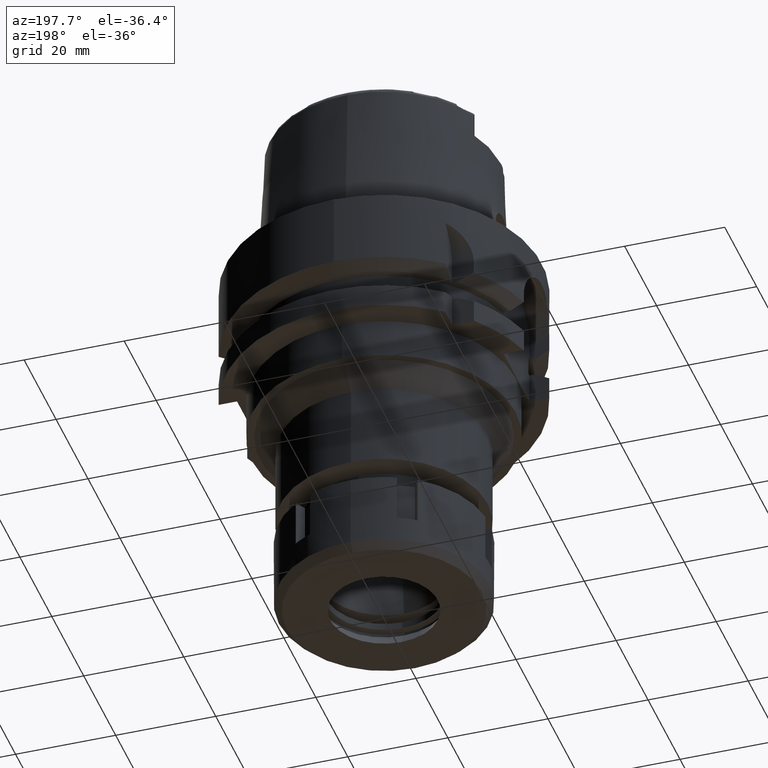
[diagram: clean part render]
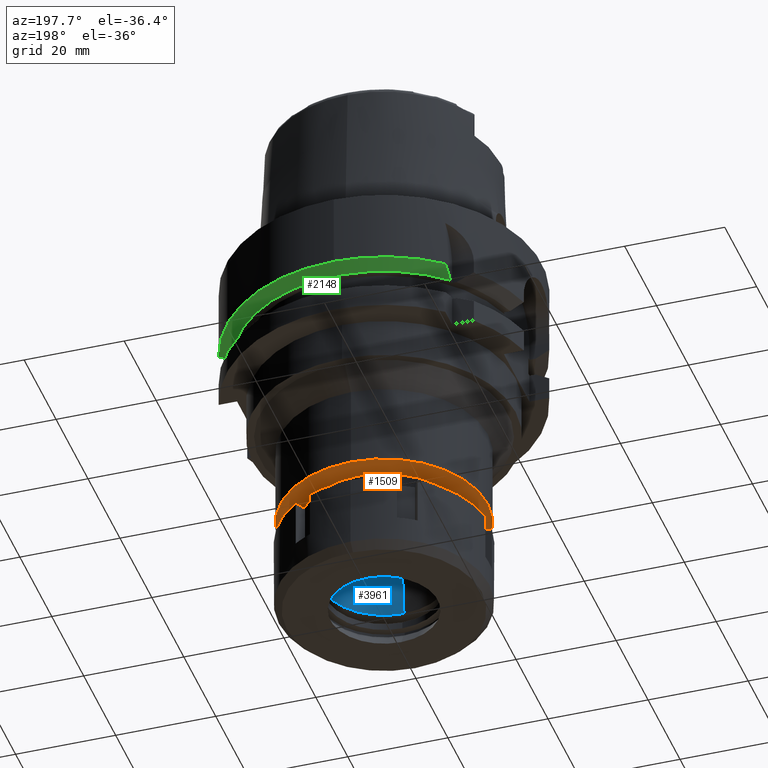
[diagram: same view with three faces highlighted in distinct colors, each labeled with its STEP entity id]
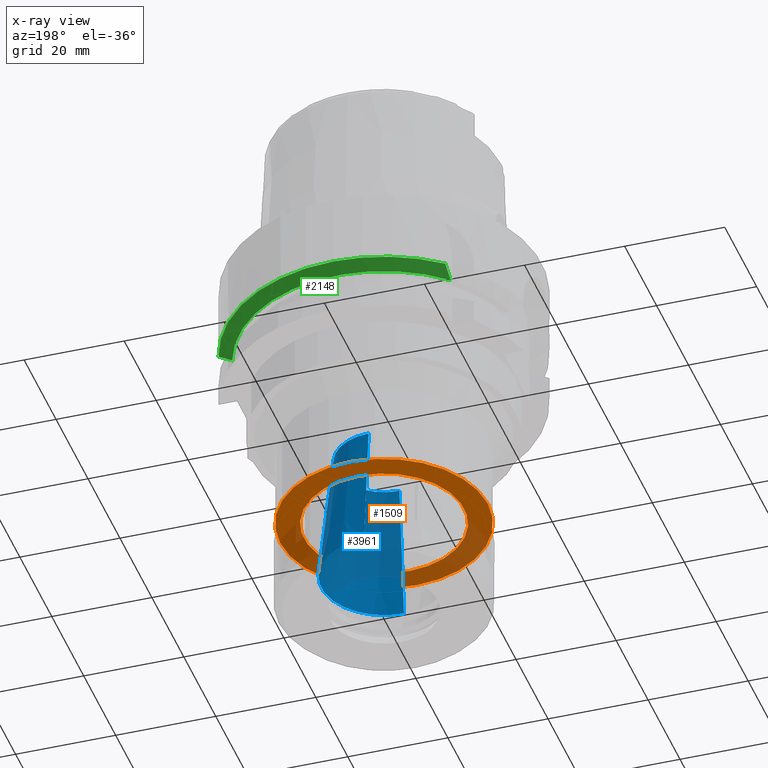
[diagram: x-ray of the same camera — body ghosted, the three highlighted faces saturated]
A machine part, auxiliary view with three faces highlighted in distinct colors.
The next image is the same camera in x-ray (body ghosted, the three faces saturated) — at least one of them is partly hidden behind the body in this view.
Their STEP definitions:

[orange] entity #1509 — the highlighted planar face has unit normal (0, 0, 1).
#61 = CIRCLE ( 'NONE', #3611, 16.00000000000000000 ) ;
#65 = CARTESIAN_POINT ( 'NONE',  ( 0.0000000000000000000, 0.0000000000000000000, -54.50000000000000000 ) ) ;
#177 = EDGE_LOOP ( 'NONE', ( #2075, #2096 ) ) ;
#295 = CARTESIAN_POINT ( 'NONE',  ( 0.0000000000000000000, 20.75000000000000000, -54.50000000000000000 ) ) ;
#370 = CARTESIAN_POINT ( 'NONE',  ( 0.0000000000000000000, 0.0000000000000000000, -54.50000000000000000 ) ) ;
#522 = EDGE_CURVE ( 'NONE', #5418, #2627, #5228, .T. ) ;
#898 = CARTESIAN_POINT ( 'NONE',  ( 0.0000000000000000000, 0.0000000000000000000, -54.50000000000000000 ) ) ;
#951 = AXIS2_PLACEMENT_3D ( 'NONE', #370, #2325, #4375 ) ;
#1010 = DIRECTION ( 'NONE',  ( 0.0000000000000000000, -1.000000000000000000, 0.0000000000000000000 ) ) ;
#1313 = EDGE_LOOP ( 'NONE', ( #4083, #4517 ) ) ;
#1509 = ADVANCED_FACE ( 'NONE', ( #5154, #2772 ), #2356, .F. ) ;
#2019 = EDGE_CURVE ( 'NONE', #3638, #3792, #4506, .T. ) ;
#2075 = ORIENTED_EDGE ( 'NONE', *, *, #3304, .F. ) ;
#2096 = ORIENTED_EDGE ( 'NONE', *, *, #2019, .F. ) ;
#2196 = CIRCLE ( 'NONE', #2594, 20.75000000000000000 ) ;
#2247 = CARTESIAN_POINT ( 'NONE',  ( 0.0000000000000000000, -20.75000000000000000, -54.50000000000000000 ) ) ;
#2297 = DIRECTION ( 'NONE',  ( 1.000000000000000000, 0.0000000000000000000, 0.0000000000000000000 ) ) ;
#2325 = DIRECTION ( 'NONE',  ( 0.0000000000000000000, 0.0000000000000000000, 1.000000000000000000 ) ) ;
#2356 = PLANE ( 'NONE',  #2910 ) ;
#2594 = AXIS2_PLACEMENT_3D ( 'NONE', #898, #6249, #4305 ) ;
#2620 = DIRECTION ( 'NONE',  ( 0.0000000000000000000, 1.000000000000000000, 0.0000000000000000000 ) ) ;
#2627 = VERTEX_POINT ( 'NONE', #5960 ) ;
#2772 = FACE_BOUND ( 'NONE', #1313, .T. ) ;
#2910 = AXIS2_PLACEMENT_3D ( 'NONE', #3726, #5715, #2297 ) ;
#3223 = CARTESIAN_POINT ( 'NONE',  ( 0.0000000000000000000, -16.00000000000000000, -54.50000000000000000 ) ) ;
#3304 = EDGE_CURVE ( 'NONE', #3792, #3638, #2196, .T. ) ;
#3611 = AXIS2_PLACEMENT_3D ( 'NONE', #6131, #4653, #2620 ) ;
#3638 = VERTEX_POINT ( 'NONE', #2247 ) ;
#3692 = EDGE_CURVE ( 'NONE', #2627, #5418, #61, .T. ) ;
#3726 = CARTESIAN_POINT ( 'NONE',  ( 0.0000000000000000000, 0.0000000000000000000, -54.50000000000000000 ) ) ;
#3792 = VERTEX_POINT ( 'NONE', #295 ) ;
#4083 = ORIENTED_EDGE ( 'NONE', *, *, #3692, .F. ) ;
#4305 = DIRECTION ( 'NONE',  ( 0.0000000000000000000, 1.000000000000000000, 0.0000000000000000000 ) ) ;
#4375 = DIRECTION ( 'NONE',  ( 0.0000000000000000000, -1.000000000000000000, 0.0000000000000000000 ) ) ;
#4506 = CIRCLE ( 'NONE', #951, 20.75000000000000000 ) ;
#4517 = ORIENTED_EDGE ( 'NONE', *, *, #522, .F. ) ;
#4653 = DIRECTION ( 'NONE',  ( 0.0000000000000000000, 0.0000000000000000000, -1.000000000000000000 ) ) ;
#5154 = FACE_OUTER_BOUND ( 'NONE', #177, .T. ) ;
#5228 = CIRCLE ( 'NONE', #5923, 16.00000000000000000 ) ;
#5418 = VERTEX_POINT ( 'NONE', #3223 ) ;
#5715 = DIRECTION ( 'NONE',  ( 0.0000000000000000000, 0.0000000000000000000, 1.000000000000000000 ) ) ;
#5836 = DIRECTION ( 'NONE',  ( 0.0000000000000000000, 0.0000000000000000000, -1.000000000000000000 ) ) ;
#5923 = AXIS2_PLACEMENT_3D ( 'NONE', #65, #5836, #1010 ) ;
#5960 = CARTESIAN_POINT ( 'NONE',  ( 0.0000000000000000000, 16.00000000000000000, -54.50000000000000000 ) ) ;
#6131 = CARTESIAN_POINT ( 'NONE',  ( 0.0000000000000000000, 0.0000000000000000000, -54.50000000000000000 ) ) ;
#6249 = DIRECTION ( 'NONE',  ( 0.0000000000000000000, 0.0000000000000000000, 1.000000000000000000 ) ) ;

[blue] entity #3961 — the highlighted conical surface has half-angle 6 deg.
#42 = AXIS2_PLACEMENT_3D ( 'NONE', #4026, #4120, #4087 ) ;
#64 = EDGE_CURVE ( 'NONE', #1741, #5789, #1886, .T. ) ;
#162 = VECTOR ( 'NONE', #5600, 1000.000000000000227 ) ;
#252 = FACE_OUTER_BOUND ( 'NONE', #4830, .T. ) ;
#315 = CARTESIAN_POINT ( 'NONE',  ( 0.0000000000000000000, 0.0000000000000000000, -53.50000000000000000 ) ) ;
#424 = CONICAL_SURFACE ( 'NONE', #1244, 11.08109282390999972, 0.1047197551196402399 ) ;
#1031 = CARTESIAN_POINT ( 'NONE',  ( 0.0000000000000000000, -12.50000000000000000, -67.00000000000000000 ) ) ;
#1244 = AXIS2_PLACEMENT_3D ( 'NONE', #315, #3196, #3757 ) ;
#1305 = ORIENTED_EDGE ( 'NONE', *, *, #2588, .F. ) ;
#1379 = EDGE_CURVE ( 'NONE', #5789, #5576, #4610, .T. ) ;
#1739 = DIRECTION ( 'NONE',  ( 0.0000000000000000000, -0.1045284632676965891, 0.9945218953682687379 ) ) ;
#1741 = VERTEX_POINT ( 'NONE', #2122 ) ;
#1886 = CIRCLE ( 'NONE', #42, 12.50000000000000000 ) ;
#2010 = DIRECTION ( 'NONE',  ( 0.0000000000000000000, 0.0000000000000000000, 1.000000000000000000 ) ) ;
#2122 = CARTESIAN_POINT ( 'NONE',  ( 0.0000000000000000000, 12.50000000000000000, -67.00000000000000000 ) ) ;
#2588 = EDGE_CURVE ( 'NONE', #1741, #6066, #4069, .T. ) ;
#3196 = DIRECTION ( 'NONE',  ( 0.0000000000000000000, 0.0000000000000000000, -1.000000000000000000 ) ) ;
#3276 = CARTESIAN_POINT ( 'NONE',  ( 0.0000000000000000000, 9.662185647822997936, -40.00000000000000000 ) ) ;
#3504 = CARTESIAN_POINT ( 'NONE',  ( 0.0000000000000000000, 0.0000000000000000000, -40.00000000000000000 ) ) ;
#3663 = CARTESIAN_POINT ( 'NONE',  ( 0.0000000000000000000, -12.50000000000000000, -67.00000000000000000 ) ) ;
#3705 = CARTESIAN_POINT ( 'NONE',  ( 0.0000000000000000000, 12.50000000000000000, -67.00000000000000000 ) ) ;
#3738 = VECTOR ( 'NONE', #1739, 1000.000000000000227 ) ;
#3757 = DIRECTION ( 'NONE',  ( 0.0000000000000000000, -1.000000000000000000, 0.0000000000000000000 ) ) ;
#3767 = CIRCLE ( 'NONE', #5876, 9.662185647822997936 ) ;
#3961 = ADVANCED_FACE ( 'NONE', ( #252 ), #424, .F. ) ;
#4026 = CARTESIAN_POINT ( 'NONE',  ( 0.0000000000000000000, 0.0000000000000000000, -67.00000000000000000 ) ) ;
#4069 = LINE ( 'NONE', #3705, #3738 ) ;
#4087 = DIRECTION ( 'NONE',  ( 0.0000000000000000000, 1.000000000000000000, 0.0000000000000000000 ) ) ;
#4120 = DIRECTION ( 'NONE',  ( 0.0000000000000000000, 0.0000000000000000000, -1.000000000000000000 ) ) ;
#4170 = ORIENTED_EDGE ( 'NONE', *, *, #1379, .T. ) ;
#4292 = CARTESIAN_POINT ( 'NONE',  ( 0.0000000000000000000, -9.662185647822997936, -40.00000000000000000 ) ) ;
#4478 = DIRECTION ( 'NONE',  ( 0.0000000000000000000, -1.000000000000000000, 0.0000000000000000000 ) ) ;
#4610 = LINE ( 'NONE', #3663, #162 ) ;
#4830 = EDGE_LOOP ( 'NONE', ( #5611, #4170, #5505, #1305 ) ) ;
#5326 = EDGE_CURVE ( 'NONE', #5576, #6066, #3767, .T. ) ;
#5505 = ORIENTED_EDGE ( 'NONE', *, *, #5326, .T. ) ;
#5576 = VERTEX_POINT ( 'NONE', #4292 ) ;
#5600 = DIRECTION ( 'NONE',  ( 0.0000000000000000000, 0.1045284632676965891, 0.9945218953682687379 ) ) ;
#5611 = ORIENTED_EDGE ( 'NONE', *, *, #64, .T. ) ;
#5789 = VERTEX_POINT ( 'NONE', #1031 ) ;
#5876 = AXIS2_PLACEMENT_3D ( 'NONE', #3504, #2010, #4478 ) ;
#6066 = VERTEX_POINT ( 'NONE', #3276 ) ;

[green] entity #2148 — the highlighted conical surface has half-angle 60 deg.
#11 = EDGE_CURVE ( 'NONE', #2689, #1176, #5912, .T. ) ;
#200 = EDGE_LOOP ( 'NONE', ( #3206, #3981, #2811, #2968, #5399 ) ) ;
#284 = CARTESIAN_POINT ( 'NONE',  ( 29.26001906976000200, 8.999999703813001517, -15.13490862518000135 ) ) ;
#479 = VERTEX_POINT ( 'NONE', #3907 ) ;
#551 = CARTESIAN_POINT ( 'NONE',  ( 0.0000000000000000000, 0.0000000000000000000, -14.62250092523999889 ) ) ;
#566 = AXIS2_PLACEMENT_3D ( 'NONE', #1026, #5423, #2085 ) ;
#793 = CARTESIAN_POINT ( 'NONE',  ( 29.87622542883000065, 9.000000694375000165, -14.79439606072000046 ) ) ;
#812 = VERTEX_POINT ( 'NONE', #4793 ) ;
#1026 = CARTESIAN_POINT ( 'NONE',  ( 0.0000000000000000000, 0.0000000000000000000, -15.37375046262000033 ) ) ;
#1172 = CIRCLE ( 'NONE', #6052, 31.49999999999999645 ) ;
#1176 = VERTEX_POINT ( 'NONE', #6133 ) ;
#1272 = CARTESIAN_POINT ( 'NONE',  ( 0.0000000000000000000, 0.0000000000000000000, -14.62250092523999889 ) ) ;
#1339 = CARTESIAN_POINT ( 'NONE',  ( 28.35117163610999924, 8.999999995092000660, -15.63575894104000241 ) ) ;
#1370 = CARTESIAN_POINT ( 'NONE',  ( -20.00001377493000021, 24.33617572673000140, -14.62245154170999939 ) ) ;
#2085 = DIRECTION ( 'NONE',  ( 0.0000000000000000000, 1.000000000000000000, 0.0000000000000000000 ) ) ;
#2148 = ADVANCED_FACE ( 'NONE', ( #5389 ), #2819, .T. ) ;
#2162 = AXIS2_PLACEMENT_3D ( 'NONE', #1272, #4231, #5153 ) ;
#2343 = CARTESIAN_POINT ( 'NONE',  ( -20.00000808210187841, 21.97726579126707236, -15.65871069883595368 ) ) ;
#2689 = VERTEX_POINT ( 'NONE', #5091 ) ;
#2743 = CARTESIAN_POINT ( 'NONE',  ( 30.18691748922999807, 9.000000694375000165, -14.62249532487000003 ) ) ;
#2811 = ORIENTED_EDGE ( 'NONE', *, *, #3972, .F. ) ;
#2819 = CONICAL_SURFACE ( 'NONE', #566, 30.19879763209999979, 1.047197551196400456 ) ;
#2968 = ORIENTED_EDGE ( 'NONE', *, *, #11, .T. ) ;
#3035 = EDGE_CURVE ( 'NONE', #812, #479, #1172, .T. ) ;
#3206 = ORIENTED_EDGE ( 'NONE', *, *, #3999, .F. ) ;
#3284 = EDGE_CURVE ( 'NONE', #1176, #4013, #4592, .T. ) ;
#3430 = B_SPLINE_CURVE_WITH_KNOTS ( 'NONE', 3,
 ( #5714, #6118, #1339, #284, #793, #2743 ),
 .UNSPECIFIED., .F., .F.,
 ( 4, 1, 1, 4 ),
 ( 0.0000000000000000000, 0.3333333333333000081, 0.6666666666667000474, 1.000000000000000000 ),
 .UNSPECIFIED. ) ;
#3773 = CARTESIAN_POINT ( 'NONE',  ( -20.00001377493000021, 24.33617572673000140, -14.62245154170999939 ) ) ;
#3907 = CARTESIAN_POINT ( 'NONE',  ( 0.0000000000000000000, 31.50000000000000000, -14.62250092523999889 ) ) ;
#3972 = EDGE_CURVE ( 'NONE', #2689, #812, #3430, .T. ) ;
#3981 = ORIENTED_EDGE ( 'NONE', *, *, #3035, .F. ) ;
#3999 = EDGE_CURVE ( 'NONE', #479, #4013, #4887, .T. ) ;
#4013 = VERTEX_POINT ( 'NONE', #1370 ) ;
#4231 = DIRECTION ( 'NONE',  ( 0.0000000000000000000, 0.0000000000000000000, 1.000000000000000000 ) ) ;
#4279 = CARTESIAN_POINT ( 'NONE',  ( -20.00002748883304093, 23.13591286296415817, -15.15787019954225556 ) ) ;
#4436 = DIRECTION ( 'NONE',  ( 0.0000000000000000000, 0.0000000000000000000, 1.000000000000000000 ) ) ;
#4532 = DIRECTION ( 'NONE',  ( 0.9583148474999051425, 0.2857142857143015191, 0.0000000000000000000 ) ) ;
#4537 = DIRECTION ( 'NONE',  ( 0.0000000000000000000, 1.000000000000000000, 0.0000000000000000000 ) ) ;
#4592 = B_SPLINE_CURVE_WITH_KNOTS ( 'NONE', 3,
 ( #4752, #2343, #4279, #3773 ),
 .UNSPECIFIED., .F., .F.,
 ( 4, 4 ),
 ( 0.0000000000000000000, 1.000000000000000000 ),
 .UNSPECIFIED. ) ;
#4752 = CARTESIAN_POINT ( 'NONE',  ( -20.00000400335999728, 20.85831984813000162, -16.12500000000000000 ) ) ;
#4793 = CARTESIAN_POINT ( 'NONE',  ( 30.18691748922999807, 9.000000694375000165, -14.62249532487000003 ) ) ;
#4887 = CIRCLE ( 'NONE', #2162, 31.50000000000000000 ) ;
#5042 = DIRECTION ( 'NONE',  ( 0.0000000000000000000, 0.0000000000000000000, 1.000000000000000000 ) ) ;
#5091 = CARTESIAN_POINT ( 'NONE',  ( 27.46035056322000045, 9.000000208911000499, -16.12500000000000000 ) ) ;
#5153 = DIRECTION ( 'NONE',  ( 0.0000000000000000000, 1.000000000000000000, 0.0000000000000000000 ) ) ;
#5323 = AXIS2_PLACEMENT_3D ( 'NONE', #5557, #5042, #4537 ) ;
#5389 = FACE_OUTER_BOUND ( 'NONE', #200, .T. ) ;
#5399 = ORIENTED_EDGE ( 'NONE', *, *, #3284, .T. ) ;
#5423 = DIRECTION ( 'NONE',  ( 0.0000000000000000000, 0.0000000000000000000, 1.000000000000000000 ) ) ;
#5557 = CARTESIAN_POINT ( 'NONE',  ( 0.0000000000000000000, 0.0000000000000000000, -16.12500000000000000 ) ) ;
#5714 = CARTESIAN_POINT ( 'NONE',  ( 27.46035056322000045, 9.000000208911000499, -16.12500000000000000 ) ) ;
#5912 = CIRCLE ( 'NONE', #5323, 28.89759526419000224 ) ;
#6052 = AXIS2_PLACEMENT_3D ( 'NONE', #551, #4436, #4532 ) ;
#6118 = CARTESIAN_POINT ( 'NONE',  ( 27.75557882461999881, 9.000000208911000499, -15.96302733895999992 ) ) ;
#6133 = CARTESIAN_POINT ( 'NONE',  ( -20.00000400335999728, 20.85831984813000162, -16.12500000000000000 ) ) ;